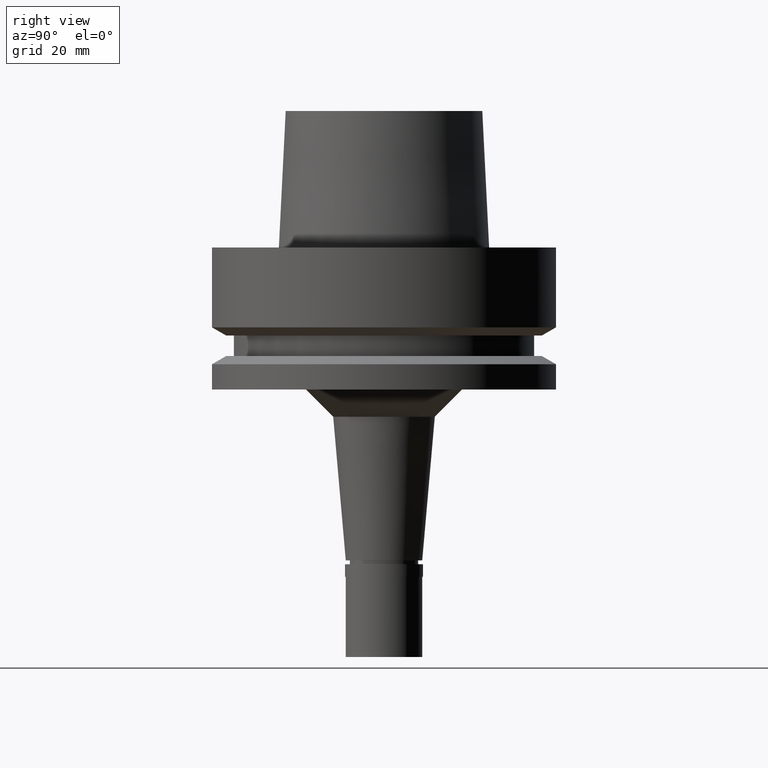
[diagram: clean part render]
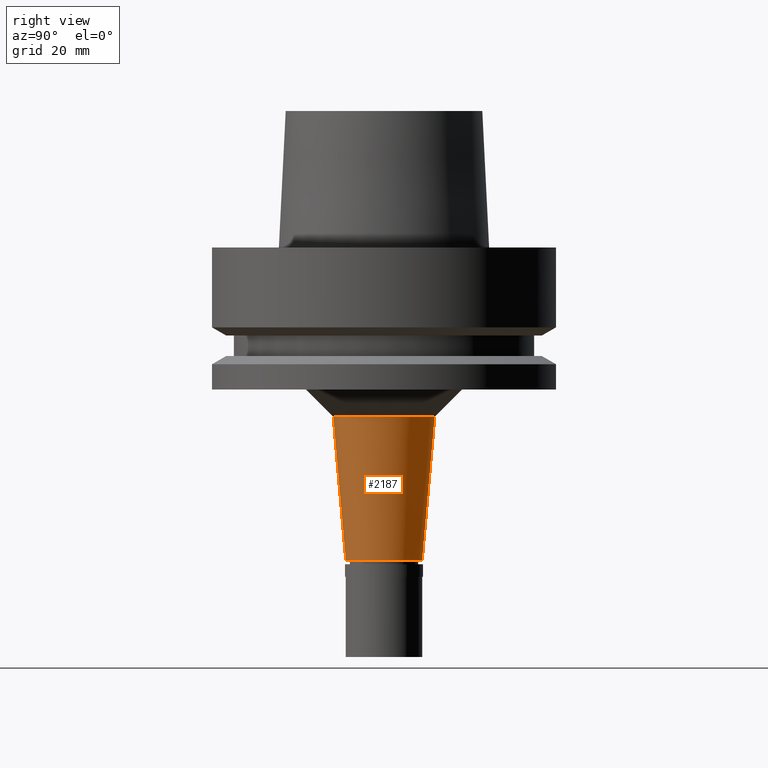
[diagram: same view with one face highlighted and labeled with its STEP entity id]
A machine part, right view. The second image highlights one B-rep face of the part: STEP entity #2187.
In plain terms, the highlighted conical surface has half-angle 5 deg.
Its self-contained STEP definition (entity closure, byte-faithful):
#67 = LINE ( 'NONE', #1729, #529 ) ;
#308 = CARTESIAN_POINT ( 'NONE',  ( 0.0000000000000000000, 9.300951850730999837, -31.00000000000000000 ) ) ;
#456 = CIRCLE ( 'NONE', #1666, 9.300951850731998150 ) ;
#529 = VECTOR ( 'NONE', #2558, 1000.000000000000114 ) ;
#538 = CARTESIAN_POINT ( 'NONE',  ( 0.0000000000000000000, 7.000000000000000000, -57.29999999999999716 ) ) ;
#545 = CONICAL_SURFACE ( 'NONE', #1189, 8.150475925365999075, 0.08726646259969973729 ) ;
#546 = CARTESIAN_POINT ( 'NONE',  ( 0.0000000000000000000, 0.0000000000000000000, -57.29999999999999716 ) ) ;
#612 = ORIENTED_EDGE ( 'NONE', *, *, #1138, .F. ) ;
#614 = DIRECTION ( 'NONE',  ( 0.0000000000000000000, 0.0000000000000000000, 1.000000000000000000 ) ) ;
#642 = VERTEX_POINT ( 'NONE', #538 ) ;
#657 = VERTEX_POINT ( 'NONE', #2560 ) ;
#747 = CARTESIAN_POINT ( 'NONE',  ( 0.0000000000000000000, 9.300951850730999837, -31.00000000000000000 ) ) ;
#792 = DIRECTION ( 'NONE',  ( 0.0000000000000000000, 0.0000000000000000000, 1.000000000000000000 ) ) ;
#830 = CARTESIAN_POINT ( 'NONE',  ( 0.0000000000000000000, -9.300951850730999837, -31.00000000000000000 ) ) ;
#1138 = EDGE_CURVE ( 'NONE', #2453, #642, #2567, .T. ) ;
#1147 = EDGE_LOOP ( 'NONE', ( #2267, #1865, #1281, #612 ) ) ;
#1161 = DIRECTION ( 'NONE',  ( 0.0000000000000000000, -1.000000000000000000, 0.0000000000000000000 ) ) ;
#1189 = AXIS2_PLACEMENT_3D ( 'NONE', #1663, #1282, #2088 ) ;
#1226 = EDGE_CURVE ( 'NONE', #657, #642, #2477, .T. ) ;
#1281 = ORIENTED_EDGE ( 'NONE', *, *, #1226, .T. ) ;
#1282 = DIRECTION ( 'NONE',  ( 0.0000000000000000000, 0.0000000000000000000, 1.000000000000000000 ) ) ;
#1302 = AXIS2_PLACEMENT_3D ( 'NONE', #546, #792, #1161 ) ;
#1642 = DIRECTION ( 'NONE',  ( 0.0000000000000000000, -1.000000000000000000, 0.0000000000000000000 ) ) ;
#1663 = CARTESIAN_POINT ( 'NONE',  ( 0.0000000000000000000, 0.0000000000000000000, -44.14999999999999858 ) ) ;
#1666 = AXIS2_PLACEMENT_3D ( 'NONE', #1861, #614, #1642 ) ;
#1729 = CARTESIAN_POINT ( 'NONE',  ( 0.0000000000000000000, -9.300951850730999837, -31.00000000000000000 ) ) ;
#1848 = VERTEX_POINT ( 'NONE', #830 ) ;
#1861 = CARTESIAN_POINT ( 'NONE',  ( 0.0000000000000000000, 0.0000000000000000000, -31.00000000000000000 ) ) ;
#1865 = ORIENTED_EDGE ( 'NONE', *, *, #2102, .T. ) ;
#1890 = FACE_OUTER_BOUND ( 'NONE', #1147, .T. ) ;
#1907 = VECTOR ( 'NONE', #2331, 1000.000000000000114 ) ;
#2088 = DIRECTION ( 'NONE',  ( 0.0000000000000000000, 1.000000000000000000, 0.0000000000000000000 ) ) ;
#2102 = EDGE_CURVE ( 'NONE', #1848, #657, #67, .T. ) ;
#2187 = ADVANCED_FACE ( 'NONE', ( #1890 ), #545, .T. ) ;
#2267 = ORIENTED_EDGE ( 'NONE', *, *, #2583, .F. ) ;
#2331 = DIRECTION ( 'NONE',  ( 0.0000000000000000000, -0.08715574274764407992, -0.9961946980917467664 ) ) ;
#2453 = VERTEX_POINT ( 'NONE', #747 ) ;
#2477 = CIRCLE ( 'NONE', #1302, 7.000000000000000000 ) ;
#2558 = DIRECTION ( 'NONE',  ( 0.0000000000000000000, 0.08715574274764407992, -0.9961946980917467664 ) ) ;
#2560 = CARTESIAN_POINT ( 'NONE',  ( 0.0000000000000000000, -7.000000000000000000, -57.29999999999999716 ) ) ;
#2567 = LINE ( 'NONE', #308, #1907 ) ;
#2583 = EDGE_CURVE ( 'NONE', #1848, #2453, #456, .T. ) ;